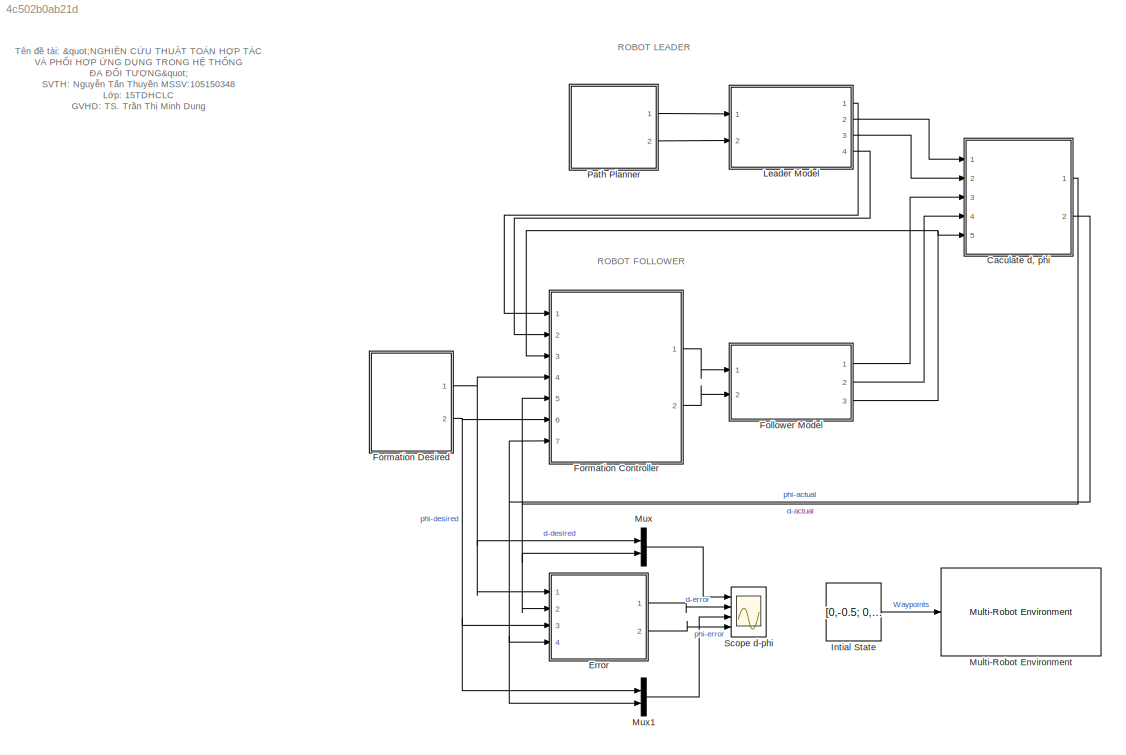
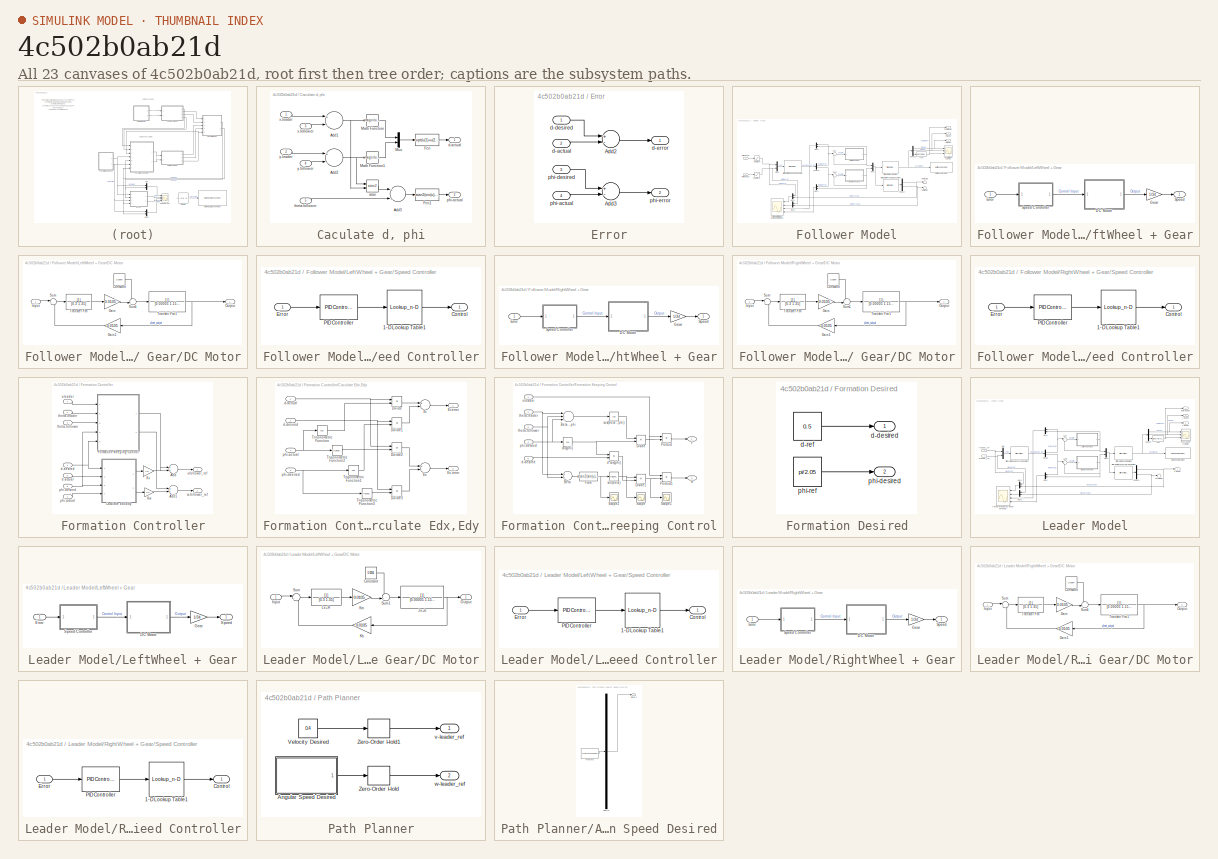
[diagram: thumbnail index - all 23 canvases of the model, root first then tree order]
MODEL slx_4c502b0ab21d
KIND model
CONFIG AbsTol = auto
CONFIG EnableMultiTasking = off
CONFIG FixedStep = 0.01
CONFIG MaxStep = auto
CONFIG MinStep = auto
CONFIG RelTol = 1e-3
CONFIG SampleTimeConstraint = Unconstrained
CONFIG Solver = FixedStepAuto
CONFIG SolverName = FixedStepAuto
CONFIG StartTime = 0.0
CONFIG StopTime = 25
BLOCK [SubSystem] Caculate d, phi
  Ports = [5, 2]
  RequestExecContextInheritance = off
BLOCK [Sum] Caculate d, phi/Add1
  InputSameDT = off
  Inputs = +-
  OutDataTypeStr = Inherit: Inherit via internal rule
  Ports = [2, 1]
  SaturateOnIntegerOverflow = off
BLOCK [Sum] Caculate d, phi/Add2
  InputSameDT = off
  Inputs = +-
  OutDataTypeStr = Inherit: Inherit via internal rule
  Ports = [2, 1]
  SaturateOnIntegerOverflow = off
BLOCK [Sum] Caculate d, phi/Add3
  InputSameDT = off
  Inputs = +-
  OutDataTypeStr = Inherit: Inherit via internal rule
  Ports = [2, 1]
  SaturateOnIntegerOverflow = off
BLOCK [Fcn] Caculate d, phi/Fcn
  Expr = sqrt(u(1)+u(2))
BLOCK [Fcn] Caculate d, phi/Fcn1
  Expr = atan2(sin(u),cos(u))
BLOCK [Math] Caculate d, phi/Math Function
  Operator = magnitude^2
  Ports = [1, 1]
BLOCK [Math] Caculate d, phi/Math Function1
  Operator = magnitude^2
  Ports = [1, 1]
BLOCK [Mux] Caculate d, phi/Mux
  DisplayOption = bar
  Inputs = 2
  Ports = [2, 1]
BLOCK [Trigonometry] Caculate d, phi/atan
  Operator = atan2
  Ports = [2, 1]
BLOCK [Outport] Caculate d, phi/d-actual
  IconDisplay = Port number
BLOCK [Outport] Caculate d, phi/phi-actual
  IconDisplay = Port number
  Port = 2
BLOCK [Inport] Caculate d, phi/theta-follower
  IconDisplay = Port number
  Port = 5
BLOCK [Inport] Caculate d, phi/x-follower
  IconDisplay = Port number
  Port = 3
BLOCK [Inport] Caculate d, phi/x-leader
  IconDisplay = Port number
BLOCK [Inport] Caculate d, phi/y-follower
  IconDisplay = Port number
  Port = 4
BLOCK [Inport] Caculate d, phi/y-leader
  IconDisplay = Port number
  Port = 2
BLOCK [SubSystem] Error
  Ports = [4, 2]
  RequestExecContextInheritance = off
BLOCK [Sum] Error/Add2
  InputSameDT = off
  Inputs = +-
  OutDataTypeStr = Inherit: Inherit via internal rule
  Ports = [2, 1]
  SaturateOnIntegerOverflow = off
BLOCK [Sum] Error/Add3
  InputSameDT = off
  Inputs = +-
  OutDataTypeStr = Inherit: Inherit via internal rule
  Ports = [2, 1]
  SaturateOnIntegerOverflow = off
BLOCK [Inport] Error/d-actual
  IconDisplay = Port number
  Port = 2
BLOCK [Inport] Error/d-desired
  IconDisplay = Port number
BLOCK [Outport] Error/d-error
  IconDisplay = Port number
BLOCK [Inport] Error/phi-actual
  IconDisplay = Port number
  Port = 4
BLOCK [Inport] Error/phi-desired
  IconDisplay = Port number
  Port = 3
BLOCK [Outport] Error/phi-error
  IconDisplay = Port number
  Port = 2
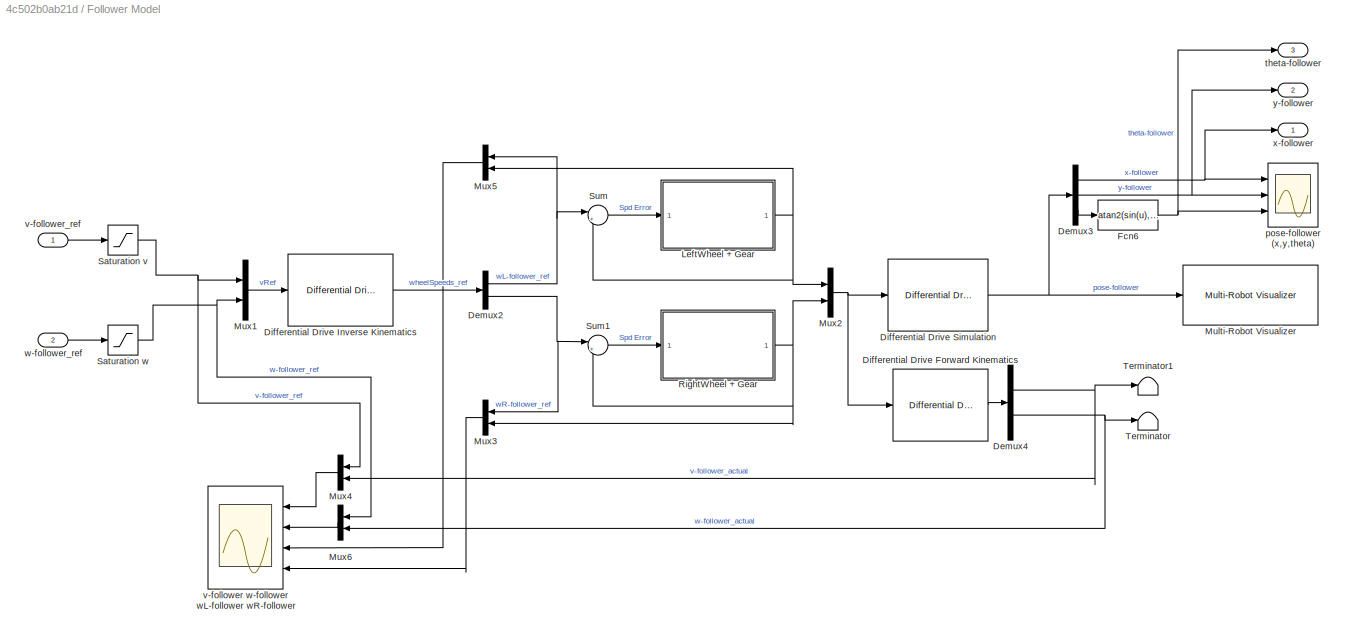
BLOCK [SubSystem] Follower Model
  Ports = [2, 3]
  RequestExecContextInheritance = off
BLOCK [Demux] Follower Model/Demux2
  DisplayOption = bar
  Outputs = 2
  Ports = [1, 2]
BLOCK [Demux] Follower Model/Demux3
  DisplayOption = bar
  Outputs = 3
  Ports = [1, 3]
BLOCK [Demux] Follower Model/Demux4
  DisplayOption = bar
  Outputs = 2
  Ports = [1, 2]
BLOCK [Reference] Follower Model/Differential Drive Forward Kinematics  REF=mobileRoboticsLib/Kinematic Models/Differential Drive/Differential Drive
Forward Kinematics
  Ports = [1, 1]
  SourceBlock = mobileRoboticsLib/Kinematic Models/Differential Drive/Differential Drive\nForward Kinematics
  SourceProductName = Mobile Robotics Simulation Toolbox
  SourceType = Differential Drive Forward Kinematics
BLOCK [Reference] Follower Model/Differential Drive Inverse Kinematics  REF=mobileRoboticsLib/Kinematic Models/Differential Drive/Differential Drive
Inverse Kinematics
  Ports = [1, 1]
  SourceBlock = mobileRoboticsLib/Kinematic Models/Differential Drive/Differential Drive\nInverse Kinematics
  SourceProductName = Mobile Robotics Simulation Library
  SourceType = Differential Drive Inverse Kinematics
BLOCK [Reference] Follower Model/Differential Drive Simulation  REF=mobileRoboticsLib/Kinematic Models/Differential Drive/Differential Drive Simulation
  Ports = [1, 1]
  SourceBlock = mobileRoboticsLib/Kinematic Models/Differential Drive/Differential Drive Simulation
  SourceProductName = Mobile Robotics Simulation Library
  SourceType = Differential Drive Simulation
BLOCK [Fcn] Follower Model/Fcn6
  Expr = atan2(sin(u),cos(u))
BLOCK [SubSystem] Follower Model/LeftWheel + Gear
  Ports = [1, 1]
  RequestExecContextInheritance = off
BLOCK [SubSystem] Follower Model/LeftWheel + Gear/DC Motor
  Ports = [1, 1]
  RequestExecContextInheritance = off
BLOCK [Constant] Follower Model/LeftWheel + Gear/DC Motor/Constant
  Value = 0.0054
BLOCK [Gain] Follower Model/LeftWheel + Gear/DC Motor/Gain
  Gain = 0.0105
  OutDataTypeStr = Inherit: Inherit via internal rule
  ParamDataTypeStr = Inherit: Inherit via internal rule
  SaturateOnIntegerOverflow = off
BLOCK [Gain] Follower Model/LeftWheel + Gear/DC Motor/Gain1
  Gain = 0.0105
  OutDataTypeStr = Inherit: Inherit via internal rule
  ParamDataTypeStr = Inherit: Inherit via internal rule
  SaturateOnIntegerOverflow = off
BLOCK [Inport] Follower Model/LeftWheel + Gear/DC Motor/Input
  IconDisplay = Port number
BLOCK [Outport] Follower Model/LeftWheel + Gear/DC Motor/Output
  IconDisplay = Port number
BLOCK [Sum] Follower Model/LeftWheel + Gear/DC Motor/Sum
  IconShape = round
  InputSameDT = off
  Inputs = |+-
  OutDataTypeStr = Inherit: Inherit via internal rule
  Ports = [2, 1]
  SaturateOnIntegerOverflow = off
BLOCK [Sum] Follower Model/LeftWheel + Gear/DC Motor/Sum1
  IconShape = round
  InputSameDT = off
  Inputs = -+|
  OutDataTypeStr = Inherit: Inherit via internal rule
  Ports = [2, 1]
  SaturateOnIntegerOverflow = off
BLOCK [TransferFcn] Follower Model/LeftWheel + Gear/DC Motor/Transfer Fcn
  Denominator = [0.3 1.35]
BLOCK [TransferFcn] Follower Model/LeftWheel + Gear/DC Motor/Transfer Fcn1
  Denominator = [0.00005 1.15e-6]
BLOCK [Inport] Follower Model/LeftWheel + Gear/Error
  IconDisplay = Port number
BLOCK [Gain] Follower Model/LeftWheel + Gear/Gear
  Gain = 1/34
  OutDataTypeStr = Inherit: Inherit via internal rule
  ParamDataTypeStr = Inherit: Inherit via internal rule
  SaturateOnIntegerOverflow = off
BLOCK [Outport] Follower Model/LeftWheel + Gear/Speed
  IconDisplay = Port number
BLOCK [SubSystem] Follower Model/LeftWheel + Gear/Speed Controller
  Ports = [1, 1]
  RequestExecContextInheritance = off
BLOCK [Lookup_n-D] Follower Model/LeftWheel + Gear/Speed Controller/1-D Lookup Table1
  BreakpointsForDimension1 = [-255:1:255]
  InternalRulePriority = Speed
  NumberOfTableDimensions = 1
  Ports = [1, 1]
  RndMeth = Simplest
  Table = [-11.999994:0.0470588:11.999994]
BLOCK [Outport] Follower Model/LeftWheel + Gear/Speed Controller/Control
  IconDisplay = Port number
BLOCK [Inport] Follower Model/LeftWheel + Gear/Speed Controller/Error
  IconDisplay = Port number
BLOCK [Reference] Follower Model/LeftWheel + Gear/Speed Controller/PID Controller  REF=simulink/Continuous/PID Controller
  Ports = [1, 1]
  SourceBlock = simulink/Continuous/PID Controller
  SourceProductBaseCode = SL
  SourceProductName = Simulink
  SourceType = PID 1dof
BLOCK [Reference] Follower Model/Multi-Robot Visualizer  REF=mobileRoboticsLib/Environments/Multi-Robot Visualizer
  Ports = [1]
  SourceBlock = mobileRoboticsLib/Environments/Multi-Robot Visualizer
  SourceProductName = Mobile Robotics Simulation Toolbox
  SourceType = Multi-Robot Visualizer
BLOCK [Mux] Follower Model/Mux1
  DisplayOption = bar
  Inputs = 2
  Ports = [2, 1]
BLOCK [Mux] Follower Model/Mux2
  DisplayOption = bar
  Inputs = 2
  Ports = [2, 1]
BLOCK [Mux] Follower Model/Mux3
  DisplayOption = bar
  Inputs = 2
  Ports = [2, 1]
BLOCK [Mux] Follower Model/Mux4
  DisplayOption = bar
  Inputs = 2
  Ports = [2, 1]
BLOCK [Mux] Follower Model/Mux5
  DisplayOption = bar
  Inputs = 2
  Ports = [2, 1]
BLOCK [Mux] Follower Model/Mux6
  DisplayOption = bar
  Inputs = 2
  Ports = [2, 1]
BLOCK [SubSystem] Follower Model/RightWheel + Gear
  Ports = [1, 1]
  RequestExecContextInheritance = off
BLOCK [SubSystem] Follower Model/RightWheel + Gear/DC Motor
  Ports = [1, 1]
  RequestExecContextInheritance = off
BLOCK [Constant] Follower Model/RightWheel + Gear/DC Motor/Constant
  Value = 0.0054
BLOCK [Gain] Follower Model/RightWheel + Gear/DC Motor/Gain
  Gain = 0.0105
  OutDataTypeStr = Inherit: Inherit via internal rule
  ParamDataTypeStr = Inherit: Inherit via internal rule
  SaturateOnIntegerOverflow = off
BLOCK [Gain] Follower Model/RightWheel + Gear/DC Motor/Gain1
  Gain = 0.0105
  OutDataTypeStr = Inherit: Inherit via internal rule
  ParamDataTypeStr = Inherit: Inherit via internal rule
  SaturateOnIntegerOverflow = off
BLOCK [Inport] Follower Model/RightWheel + Gear/DC Motor/Input
  IconDisplay = Port number
BLOCK [Outport] Follower Model/RightWheel + Gear/DC Motor/Output
  IconDisplay = Port number
BLOCK [Sum] Follower Model/RightWheel + Gear/DC Motor/Sum
  IconShape = round
  InputSameDT = off
  Inputs = |+-
  OutDataTypeStr = Inherit: Inherit via internal rule
  Ports = [2, 1]
  SaturateOnIntegerOverflow = off
BLOCK [Sum] Follower Model/RightWheel + Gear/DC Motor/Sum1
  IconShape = round
  InputSameDT = off
  Inputs = -+|
  OutDataTypeStr = Inherit: Inherit via internal rule
  Ports = [2, 1]
  SaturateOnIntegerOverflow = off
BLOCK [TransferFcn] Follower Model/RightWheel + Gear/DC Motor/Transfer Fcn
  Denominator = [0.3 1.35]
BLOCK [TransferFcn] Follower Model/RightWheel + Gear/DC Motor/Transfer Fcn1
  Denominator = [0.00005 1.15e-6]
BLOCK [Inport] Follower Model/RightWheel + Gear/Error
  IconDisplay = Port number
BLOCK [Gain] Follower Model/RightWheel + Gear/Gear
  Gain = 1/34
  OutDataTypeStr = Inherit: Inherit via internal rule
  ParamDataTypeStr = Inherit: Inherit via internal rule
  SaturateOnIntegerOverflow = off
BLOCK [Outport] Follower Model/RightWheel + Gear/Speed
  IconDisplay = Port number
BLOCK [SubSystem] Follower Model/RightWheel + Gear/Speed Controller
  Ports = [1, 1]
  RequestExecContextInheritance = off
BLOCK [Lookup_n-D] Follower Model/RightWheel + Gear/Speed Controller/1-D Lookup Table1
  BreakpointsForDimension1 = [-255:1:255]
  InternalRulePriority = Speed
  NumberOfTableDimensions = 1
  Ports = [1, 1]
  RndMeth = Simplest
  Table = [-11.999994:0.0470588:11.999994]
BLOCK [Outport] Follower Model/RightWheel + Gear/Speed Controller/Control
  IconDisplay = Port number
BLOCK [Inport] Follower Model/RightWheel + Gear/Speed Controller/Error
  IconDisplay = Port number
BLOCK [Reference] Follower Model/RightWheel + Gear/Speed Controller/PID Controller  REF=simulink/Continuous/PID Controller
  Ports = [1, 1]
  SourceBlock = simulink/Continuous/PID Controller
  SourceProductBaseCode = SL
  SourceProductName = Simulink
  SourceType = PID 1dof
BLOCK [Saturate] Follower Model/Saturation v
  InputPortMap = u0
  LowerLimit = 0
  Ports = [1, 1]
  UpperLimit = 0.8
BLOCK [Saturate] Follower Model/Saturation w
  InputPortMap = u0
  Ports = [1, 1]
BLOCK [Sum] Follower Model/Sum
  IconShape = round
  InputSameDT = off
  Inputs = |+-
  OutDataTypeStr = Inherit: Inherit via internal rule
  Ports = [2, 1]
  SaturateOnIntegerOverflow = off
BLOCK [Sum] Follower Model/Sum1
  IconShape = round
  InputSameDT = off
  Inputs = |+-
  OutDataTypeStr = Inherit: Inherit via internal rule
  Ports = [2, 1]
  SaturateOnIntegerOverflow = off
BLOCK [Terminator] Follower Model/Terminator
BLOCK [Terminator] Follower Model/Terminator1
BLOCK [Scope] Follower Model/pose-follower (x,y,theta)
  Floating = off
  NumInputPorts = 3
  Ports = [3]
  ScopeSpecificationString = Simulink.scopes.TimeScopeBlockCfg('CurrentConfiguration', extmgr.ConfigurationSet(extmgr.Configuration('Core','General UI',true,'FigureColor',[1 1 1]),extmgr.Configuration('Core','Source UI',true),extmgr.Configuration('Sources','WiredSimulink',true,'DataLoggingVariableName','ScopeData1'),extmgr.Configuration('Visuals','Time Domain',true,'SerializedDisplays',{struct('MinYLimReal','-0.66272','MaxYLi...<+3225ch>
BLOCK [Outport] Follower Model/theta-follower
  IconDisplay = Port number
  Port = 3
BLOCK [Scope] Follower Model/v-follower w-follower wL-follower wR-follower
  Floating = off
  NumInputPorts = 4
  Ports = [4]
  ScopeSpecificationString = Simulink.scopes.TimeScopeBlockCfg('CurrentConfiguration', extmgr.ConfigurationSet(extmgr.Configuration('Core','General UI',true,'FigureColor',[1 1 1]),extmgr.Configuration('Core','Source UI',true),extmgr.Configuration('Sources','WiredSimulink',true,'DataLoggingVariableName','ScopeData2'),extmgr.Configuration('Visuals','Time Domain',true,'SerializedDisplays',{struct('MinYLimReal','-0.07805','MaxYLi...<+4511ch>
BLOCK [Inport] Follower Model/v-follower_ref
  IconDisplay = Port number
BLOCK [Inport] Follower Model/w-follower_ref
  IconDisplay = Port number
  Port = 2
BLOCK [Outport] Follower Model/x-follower
  IconDisplay = Port number
BLOCK [Outport] Follower Model/y-follower
  IconDisplay = Port number
  Port = 2
BLOCK [SubSystem] Formation Controller
  Ports = [7, 2]
  RequestExecContextInheritance = off
BLOCK [Sum] Formation Controller/Add
  InputSameDT = off
  OutDataTypeStr = Inherit: Inherit via internal rule
  Ports = [2, 1]
  SaturateOnIntegerOverflow = off
BLOCK [Sum] Formation Controller/Add1
  InputSameDT = off
  OutDataTypeStr = Inherit: Inherit via internal rule
  Ports = [2, 1]
  SaturateOnIntegerOverflow = off
BLOCK [SubSystem] Formation Controller/Caculate Edx,Edy
  Ports = [4, 2]
  RequestExecContextInheritance = off
BLOCK [Product] Formation Controller/Caculate Edx,Edy/Divide
  InputSameDT = off
  Inputs = **
  OutDataTypeStr = Inherit: Inherit via internal rule
  Ports = [2, 1]
  RndMeth = Floor
  SaturateOnIntegerOverflow = off
BLOCK [Product] Formation Controller/Caculate Edx,Edy/Divide1
  InputSameDT = off
  Inputs = **
  OutDataTypeStr = Inherit: Inherit via internal rule
  Ports = [2, 1]
  RndMeth = Floor
  SaturateOnIntegerOverflow = off
BLOCK [Product] Formation Controller/Caculate Edx,Edy/Divide2
  InputSameDT = off
  Inputs = **
  OutDataTypeStr = Inherit: Inherit via internal rule
  Ports = [2, 1]
  RndMeth = Floor
  SaturateOnIntegerOverflow = off
BLOCK [Product] Formation Controller/Caculate Edx,Edy/Divide3
  InputSameDT = off
  Inputs = **
  OutDataTypeStr = Inherit: Inherit via internal rule
  Ports = [2, 1]
  RndMeth = Floor
  SaturateOnIntegerOverflow = off
BLOCK [Sum] Formation Controller/Caculate Edx,Edy/Et
  InputSameDT = off
  Inputs = +-
  OutDataTypeStr = Inherit: Inherit via internal rule
  Ports = [2, 1]
  SaturateOnIntegerOverflow = off
BLOCK [Outport] Formation Controller/Caculate Edx,Edy/Et-error
  IconDisplay = Port number
BLOCK [Sum] Formation Controller/Caculate Edx,Edy/Ev
  InputSameDT = off
  Inputs = +-
  OutDataTypeStr = Inherit: Inherit via internal rule
  Ports = [2, 1]
  SaturateOnIntegerOverflow = off
BLOCK [Outport] Formation Controller/Caculate Edx,Edy/Ev-error
  IconDisplay = Port number
  Port = 2
BLOCK [Trigonometry] Formation Controller/Caculate Edx,Edy/Trigonometric Function
  Operator = cos
  Ports = [1, 1]
BLOCK [Trigonometry] Formation Controller/Caculate Edx,Edy/Trigonometric Function1
  Operator = cos
  Ports = [1, 1]
BLOCK [Trigonometry] Formation Controller/Caculate Edx,Edy/Trigonometric Function2
  Ports = [1, 1]
BLOCK [Trigonometry] Formation Controller/Caculate Edx,Edy/Trigonometric Function3
  Ports = [1, 1]
BLOCK [Inport] Formation Controller/Caculate Edx,Edy/d-actual
  IconDisplay = Port number
  Port = 2
BLOCK [Inport] Formation Controller/Caculate Edx,Edy/d-desired
  IconDisplay = Port number
BLOCK [Inport] Formation Controller/Caculate Edx,Edy/phi-actual
  IconDisplay = Port number
  Port = 4
BLOCK [Inport] Formation Controller/Caculate Edx,Edy/phi-desired
  IconDisplay = Port number
  Port = 3
BLOCK [SubSystem] Formation Controller/Formation Keeping Control
  Ports = [5, 2]
  RequestExecContextInheritance = off
BLOCK [Sum] Formation Controller/Formation Keeping Control/Beta
  InputSameDT = off
  Inputs = +-
  OutDataTypeStr = Inherit: Inherit via internal rule
  Ports = [2, 1]
  SaturateOnIntegerOverflow = off
BLOCK [Sum] Formation Controller/Formation Keeping Control/Beta - phi
  InputSameDT = off
  Inputs = +--
  OutDataTypeStr = Inherit: Inherit via internal rule
  Ports = [3, 1]
  SaturateOnIntegerOverflow = off
BLOCK [Product] Formation Controller/Formation Keeping Control/Divide
  InputSameDT = off
  Inputs = */
  OutDataTypeStr = Inherit: Inherit via internal rule
  Ports = [2, 1]
  RndMeth = Floor
  SaturateOnIntegerOverflow = off
BLOCK [Product] Formation Controller/Formation Keeping Control/Divide1
  InputSameDT = off
  Inputs = */
  OutDataTypeStr = Inherit: Inherit via internal rule
  Ports = [2, 1]
  RndMeth = Floor
  SaturateOnIntegerOverflow = off
BLOCK [Fcn] Formation Controller/Formation Keeping Control/Fcn6
  Expr = atan2(sin(u),cos(u))
BLOCK [Product] Formation Controller/Formation Keeping Control/Product
  InputSameDT = off
  OutDataTypeStr = Inherit: Inherit via internal rule
  Ports = [2, 1]
  RndMeth = Floor
  SaturateOnIntegerOverflow = off
BLOCK [Product] Formation Controller/Formation Keeping Control/Product1
  InputSameDT = off
  OutDataTypeStr = Inherit: Inherit via internal rule
  Ports = [2, 1]
  RndMeth = Floor
  SaturateOnIntegerOverflow = off
BLOCK [Scope] Formation Controller/Formation Keeping Control/Scope
  Floating = off
  NumInputPorts = 1
  Ports = [1]
  ScopeSpecificationString = Simulink.scopes.TimeScopeBlockCfg('CurrentConfiguration', extmgr.ConfigurationSet(extmgr.Configuration('Core','General UI',true),extmgr.Configuration('Core','Source UI',true),extmgr.Configuration('Sources','WiredSimulink',true,'DataLoggingVariableName','ScopeData4'),extmgr.Configuration('Visuals','Time Domain',true,'SerializedDisplays',{struct('MinYLimReal','-0.0383','MaxYLimReal','0.0383','YLabel...<+1406ch>
BLOCK [Scope] Formation Controller/Formation Keeping Control/Scope1
  Floating = off
  NumInputPorts = 1
  Ports = [1]
  ScopeSpecificationString = Simulink.scopes.TimeScopeBlockCfg('CurrentConfiguration', extmgr.ConfigurationSet(extmgr.Configuration('Core','General UI',true),extmgr.Configuration('Core','Source UI',true),extmgr.Configuration('Sources','WiredSimulink',true,'DataLoggingVariableName','ScopeData2'),extmgr.Configuration('Visuals','Time Domain',true,'SerializedDisplays',{struct('MinYLimReal','-2.00000','MaxYLimReal','2.00000','YLab...<+1439ch>
BLOCK [Scope] Formation Controller/Formation Keeping Control/Scope2
  Floating = off
  NumInputPorts = 1
  Ports = [1]
  ScopeSpecificationString = Simulink.scopes.TimeScopeBlockCfg('CurrentConfiguration', extmgr.ConfigurationSet(extmgr.Configuration('Core','General UI',true),extmgr.Configuration('Core','Source UI',true),extmgr.Configuration('Sources','WiredSimulink',true,'DataLoggingVariableName','ScopeData1'),extmgr.Configuration('Visuals','Time Domain',true,'SerializedDisplays',{struct('MinYLimReal','-0.01785','MaxYLimReal','0.01783','YLab...<+1434ch>
BLOCK [Trigonometry] Formation Controller/Formation Keeping Control/cos(beta - phi)
  Operator = cos
  Ports = [1, 1]
BLOCK [Trigonometry] Formation Controller/Formation Keeping Control/cos(phi)
  Operator = cos
  Ports = [1, 1]
BLOCK [Product] Formation Controller/Formation Keeping Control/d*cos(phi)
  InputSameDT = off
  Inputs = **
  OutDataTypeStr = Inherit: Inherit via internal rule
  Ports = [2, 1]
  RndMeth = Floor
  SaturateOnIntegerOverflow = off
BLOCK [Inport] Formation Controller/Formation Keeping Control/d-desired
  IconDisplay = Port number
  Port = 5
BLOCK [Inport] Formation Controller/Formation Keeping Control/phi-desired
  IconDisplay = Port number
  Port = 4
BLOCK [Trigonometry] Formation Controller/Formation Keeping Control/sin(beta)
  Ports = [1, 1]
BLOCK [Inport] Formation Controller/Formation Keeping Control/theta-follower
  IconDisplay = Port number
  Port = 3
BLOCK [Inport] Formation Controller/Formation Keeping Control/theta-leader
  IconDisplay = Port number
  Port = 2
BLOCK [Outport] Formation Controller/Formation Keeping Control/v
  IconDisplay = Port number
BLOCK [Inport] Formation Controller/Formation Keeping Control/v-leader
  IconDisplay = Port number
BLOCK [Outport] Formation Controller/Formation Keeping Control/w
  IconDisplay = Port number
  Port = 2
BLOCK [Gain] Formation Controller/Kv
  Gain = 1.8
  OutDataTypeStr = Inherit: Inherit via internal rule
  ParamDataTypeStr = Inherit: Inherit via internal rule
  SaturateOnIntegerOverflow = off
BLOCK [Gain] Formation Controller/Kw
  Gain = 0.5
  OutDataTypeStr = Inherit: Inherit via internal rule
  ParamDataTypeStr = Inherit: Inherit via internal rule
  SaturateOnIntegerOverflow = off
BLOCK [Inport] Formation Controller/d-actual
  IconDisplay = Port number
  Port = 5
BLOCK [Inport] Formation Controller/d-desired
  IconDisplay = Port number
  Port = 4
BLOCK [Inport] Formation Controller/phi-actual
  IconDisplay = Port number
  Port = 7
BLOCK [Inport] Formation Controller/phi-desired
  IconDisplay = Port number
  Port = 6
BLOCK [Inport] Formation Controller/theta-follower
  IconDisplay = Port number
  Port = 3
BLOCK [Inport] Formation Controller/theta-leader
  IconDisplay = Port number
  Port = 2
BLOCK [Outport] Formation Controller/v-follower_ref
  IconDisplay = Port number
BLOCK [Inport] Formation Controller/v-leader
  IconDisplay = Port number
BLOCK [Outport] Formation Controller/w-follower_ref
  IconDisplay = Port number
  Port = 2
BLOCK [SubSystem] Formation Desired
  Ports = [0, 2]
  RequestExecContextInheritance = off
BLOCK [Outport] Formation Desired/d-desired
  IconDisplay = Port number
BLOCK [Constant] Formation Desired/d-ref
  Value = 0.5
BLOCK [Outport] Formation Desired/phi-desired
  IconDisplay = Port number
  Port = 2
BLOCK [Constant] Formation Desired/phi-ref
  Value = pi/2.05
BLOCK [Constant] Intial State
  Value = [0,-0.5; 0,0]
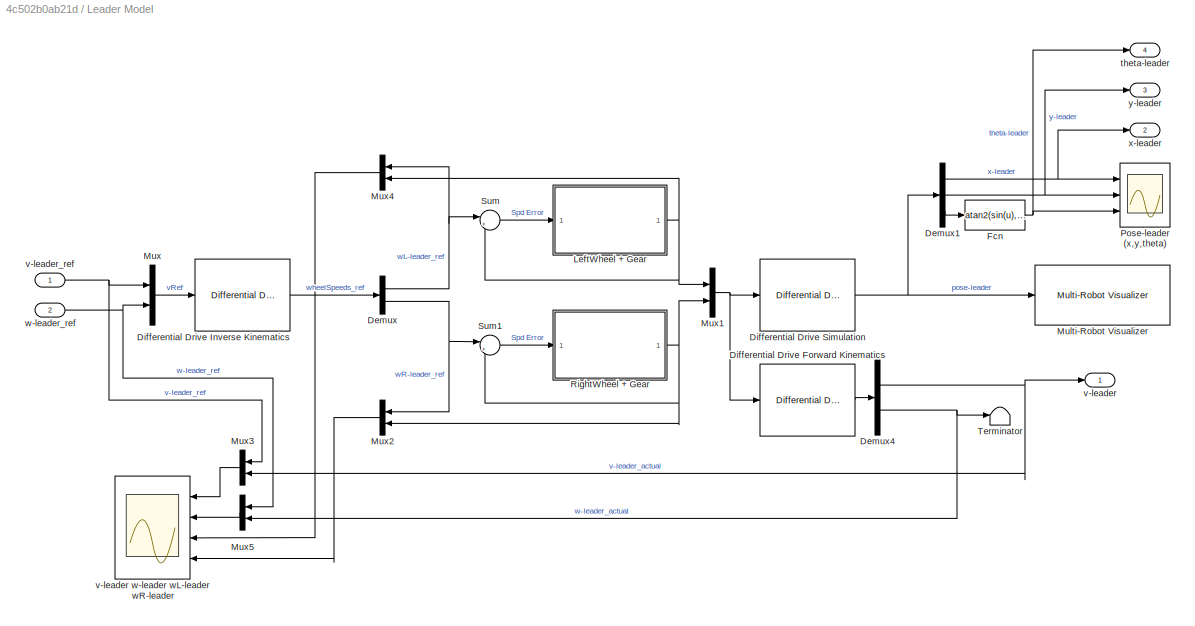
BLOCK [SubSystem] Leader Model
  Ports = [2, 4]
  RequestExecContextInheritance = off
BLOCK [Demux] Leader Model/Demux
  DisplayOption = bar
  Outputs = 2
  Ports = [1, 2]
BLOCK [Demux] Leader Model/Demux1
  DisplayOption = bar
  Outputs = 3
  Ports = [1, 3]
BLOCK [Demux] Leader Model/Demux4
  DisplayOption = bar
  Outputs = 2
  Ports = [1, 2]
BLOCK [Reference] Leader Model/Differential Drive Forward Kinematics  REF=mobileRoboticsLib/Kinematic Models/Differential Drive/Differential Drive
Forward Kinematics
  Ports = [1, 1]
  SourceBlock = mobileRoboticsLib/Kinematic Models/Differential Drive/Differential Drive\nForward Kinematics
  SourceProductName = Mobile Robotics Simulation Toolbox
  SourceType = Differential Drive Forward Kinematics
BLOCK [Reference] Leader Model/Differential Drive Inverse Kinematics  REF=mobileRoboticsLib/Kinematic Models/Differential Drive/Differential Drive
Inverse Kinematics
  Ports = [1, 1]
  SourceBlock = mobileRoboticsLib/Kinematic Models/Differential Drive/Differential Drive\nInverse Kinematics
  SourceProductName = Mobile Robotics Simulation Toolbox
  SourceType = Differential Drive Inverse Kinematics
BLOCK [Reference] Leader Model/Differential Drive Simulation  REF=mobileRoboticsLib/Kinematic Models/Differential Drive/Differential Drive Simulation
  Ports = [1, 1]
  SourceBlock = mobileRoboticsLib/Kinematic Models/Differential Drive/Differential Drive Simulation
  SourceProductName = Mobile Robotics Simulation Toolbox
  SourceType = Differential Drive Simulation
BLOCK [Fcn] Leader Model/Fcn
  Expr = atan2(sin(u),cos(u))
BLOCK [SubSystem] Leader Model/LeftWheel + Gear
  Ports = [1, 1]
  RequestExecContextInheritance = off
BLOCK [SubSystem] Leader Model/LeftWheel + Gear/DC Motor
  Ports = [1, 1]
  RequestExecContextInheritance = off
BLOCK [Constant] Leader Model/LeftWheel + Gear/DC Motor/Constant
  Value = 0.0054
BLOCK [Inport] Leader Model/LeftWheel + Gear/DC Motor/Input
  IconDisplay = Port number
BLOCK [TransferFcn] Leader Model/LeftWheel + Gear/DC Motor/Js+b
  Denominator = [0.00005 1.15e-6]
BLOCK [Gain] Leader Model/LeftWheel + Gear/DC Motor/Kb
  Gain = 0.0105
  OutDataTypeStr = Inherit: Inherit via internal rule
  ParamDataTypeStr = Inherit: Inherit via internal rule
  SaturateOnIntegerOverflow = off
BLOCK [Gain] Leader Model/LeftWheel + Gear/DC Motor/Km
  Gain = 0.0105
  OutDataTypeStr = Inherit: Inherit via internal rule
  ParamDataTypeStr = Inherit: Inherit via internal rule
  SaturateOnIntegerOverflow = off
BLOCK [TransferFcn] Leader Model/LeftWheel + Gear/DC Motor/Ls+R
  Denominator = [0.3 1.35]
BLOCK [Outport] Leader Model/LeftWheel + Gear/DC Motor/Output
  IconDisplay = Port number
BLOCK [Sum] Leader Model/LeftWheel + Gear/DC Motor/Sum
  IconShape = round
  InputSameDT = off
  Inputs = |+-
  OutDataTypeStr = Inherit: Inherit via internal rule
  Ports = [2, 1]
  SaturateOnIntegerOverflow = off
BLOCK [Sum] Leader Model/LeftWheel + Gear/DC Motor/Sum1
  IconShape = round
  InputSameDT = off
  Inputs = -+|
  OutDataTypeStr = Inherit: Inherit via internal rule
  Ports = [2, 1]
  SaturateOnIntegerOverflow = off
BLOCK [Inport] Leader Model/LeftWheel + Gear/Error
  IconDisplay = Port number
BLOCK [Gain] Leader Model/LeftWheel + Gear/Gear
  Gain = 1/34
  OutDataTypeStr = Inherit: Inherit via internal rule
  ParamDataTypeStr = Inherit: Inherit via internal rule
  SaturateOnIntegerOverflow = off
BLOCK [Outport] Leader Model/LeftWheel + Gear/Speed
  IconDisplay = Port number
BLOCK [SubSystem] Leader Model/LeftWheel + Gear/Speed Controller
  Ports = [1, 1]
  RequestExecContextInheritance = off
BLOCK [Lookup_n-D] Leader Model/LeftWheel + Gear/Speed Controller/1-D Lookup Table1
  BreakpointsForDimension1 = [-255:1:255]
  InternalRulePriority = Speed
  NumberOfTableDimensions = 1
  Ports = [1, 1]
  RndMeth = Simplest
  Table = [-11.999994:0.0470588:11.999994]
BLOCK [Outport] Leader Model/LeftWheel + Gear/Speed Controller/Control
  IconDisplay = Port number
BLOCK [Inport] Leader Model/LeftWheel + Gear/Speed Controller/Error
  IconDisplay = Port number
BLOCK [Reference] Leader Model/LeftWheel + Gear/Speed Controller/PID Controller  REF=simulink/Continuous/PID Controller
  Ports = [1, 1]
  SourceBlock = simulink/Continuous/PID Controller
  SourceProductBaseCode = SL
  SourceProductName = Simulink
  SourceType = PID 1dof
BLOCK [Reference] Leader Model/Multi-Robot Visualizer  REF=mobileRoboticsLib/Environments/Multi-Robot Visualizer
  Ports = [1]
  SourceBlock = mobileRoboticsLib/Environments/Multi-Robot Visualizer
  SourceProductName = Mobile Robotics Simulation Toolbox
  SourceType = Multi-Robot Visualizer
BLOCK [Mux] Leader Model/Mux
  DisplayOption = bar
  Inputs = 2
  Ports = [2, 1]
BLOCK [Mux] Leader Model/Mux1
  DisplayOption = bar
  Inputs = 2
  Ports = [2, 1]
BLOCK [Mux] Leader Model/Mux2
  DisplayOption = bar
  Inputs = 2
  Ports = [2, 1]
BLOCK [Mux] Leader Model/Mux3
  DisplayOption = bar
  Inputs = 2
  Ports = [2, 1]
BLOCK [Mux] Leader Model/Mux4
  DisplayOption = bar
  Inputs = 2
  Ports = [2, 1]
BLOCK [Mux] Leader Model/Mux5
  DisplayOption = bar
  Inputs = 2
  Ports = [2, 1]
BLOCK [Scope] Leader Model/Pose-leader (x,y,theta)
  Floating = off
  NumInputPorts = 3
  Ports = [3]
  ScopeSpecificationString = Simulink.scopes.TimeScopeBlockCfg('CurrentConfiguration', extmgr.ConfigurationSet(extmgr.Configuration('Core','General UI',true,'FigureColor',[1 1 1]),extmgr.Configuration('Core','Source UI',true),extmgr.Configuration('Sources','WiredSimulink',true,'DataLoggingVariableName','ScopeData1'),extmgr.Configuration('Visuals','Time Domain',true,'SerializedDisplays',{struct('MinYLimReal','-0.73129','MaxYLi...<+3217ch>
BLOCK [SubSystem] Leader Model/RightWheel + Gear
  Ports = [1, 1]
  RequestExecContextInheritance = off
BLOCK [SubSystem] Leader Model/RightWheel + Gear/DC Motor
  Ports = [1, 1]
  RequestExecContextInheritance = off
BLOCK [Constant] Leader Model/RightWheel + Gear/DC Motor/Constant
  Value = 0.0054
BLOCK [Gain] Leader Model/RightWheel + Gear/DC Motor/Gain
  Gain = 0.0105
  OutDataTypeStr = Inherit: Inherit via internal rule
  ParamDataTypeStr = Inherit: Inherit via internal rule
  SaturateOnIntegerOverflow = off
BLOCK [Gain] Leader Model/RightWheel + Gear/DC Motor/Gain1
  Gain = 0.0105
  OutDataTypeStr = Inherit: Inherit via internal rule
  ParamDataTypeStr = Inherit: Inherit via internal rule
  SaturateOnIntegerOverflow = off
BLOCK [Inport] Leader Model/RightWheel + Gear/DC Motor/Input
  IconDisplay = Port number
BLOCK [Outport] Leader Model/RightWheel + Gear/DC Motor/Output
  IconDisplay = Port number
BLOCK [Sum] Leader Model/RightWheel + Gear/DC Motor/Sum
  IconShape = round
  InputSameDT = off
  Inputs = |+-
  OutDataTypeStr = Inherit: Inherit via internal rule
  Ports = [2, 1]
  SaturateOnIntegerOverflow = off
BLOCK [Sum] Leader Model/RightWheel + Gear/DC Motor/Sum1
  IconShape = round
  InputSameDT = off
  Inputs = -+|
  OutDataTypeStr = Inherit: Inherit via internal rule
  Ports = [2, 1]
  SaturateOnIntegerOverflow = off
BLOCK [TransferFcn] Leader Model/RightWheel + Gear/DC Motor/Transfer Fcn
  Denominator = [0.3 1.35]
BLOCK [TransferFcn] Leader Model/RightWheel + Gear/DC Motor/Transfer Fcn1
  Denominator = [0.00005 1.15e-6]
BLOCK [Inport] Leader Model/RightWheel + Gear/Error
  IconDisplay = Port number
BLOCK [Gain] Leader Model/RightWheel + Gear/Gear
  Gain = 1/34
  OutDataTypeStr = Inherit: Inherit via internal rule
  ParamDataTypeStr = Inherit: Inherit via internal rule
  SaturateOnIntegerOverflow = off
BLOCK [Outport] Leader Model/RightWheel + Gear/Speed
  IconDisplay = Port number
BLOCK [SubSystem] Leader Model/RightWheel + Gear/Speed Controller
  Ports = [1, 1]
  RequestExecContextInheritance = off
BLOCK [Lookup_n-D] Leader Model/RightWheel + Gear/Speed Controller/1-D Lookup Table1
  BreakpointsForDimension1 = [-255:1:255]
  InternalRulePriority = Speed
  NumberOfTableDimensions = 1
  Ports = [1, 1]
  RndMeth = Simplest
  Table = [-11.999994:0.0470588:11.999994]
BLOCK [Outport] Leader Model/RightWheel + Gear/Speed Controller/Control
  IconDisplay = Port number
BLOCK [Inport] Leader Model/RightWheel + Gear/Speed Controller/Error
  IconDisplay = Port number
BLOCK [Reference] Leader Model/RightWheel + Gear/Speed Controller/PID Controller  REF=simulink/Continuous/PID Controller
  Ports = [1, 1]
  SourceBlock = simulink/Continuous/PID Controller
  SourceProductBaseCode = SL
  SourceProductName = Simulink
  SourceType = PID 1dof
BLOCK [Sum] Leader Model/Sum
  IconShape = round
  InputSameDT = off
  Inputs = |+-
  OutDataTypeStr = Inherit: Inherit via internal rule
  Ports = [2, 1]
  SaturateOnIntegerOverflow = off
BLOCK [Sum] Leader Model/Sum1
  IconShape = round
  InputSameDT = off
  Inputs = |+-
  OutDataTypeStr = Inherit: Inherit via internal rule
  Ports = [2, 1]
  SaturateOnIntegerOverflow = off
BLOCK [Terminator] Leader Model/Terminator
BLOCK [Outport] Leader Model/theta-leader
  IconDisplay = Port number
  Port = 4
BLOCK [Outport] Leader Model/v-leader
  IconDisplay = Port number
BLOCK [Scope] Leader Model/v-leader w-leader wL-leader wR-leader
  Floating = off
  NumInputPorts = 4
  Ports = [4]
  ScopeSpecificationString = Simulink.scopes.TimeScopeBlockCfg('CurrentConfiguration', extmgr.ConfigurationSet(extmgr.Configuration('Core','General UI',true,'FigureColor',[1 1 1]),extmgr.Configuration('Core','Source UI',true),extmgr.Configuration('Sources','WiredSimulink',true,'DataLoggingVariableName','ScopeData1'),extmgr.Configuration('Visuals','Time Domain',true,'SerializedDisplays',{struct('MinYLimReal','-0.05127','MaxYLi...<+4497ch>
BLOCK [Inport] Leader Model/v-leader_ref
  IconDisplay = Port number
BLOCK [Inport] Leader Model/w-leader_ref
  IconDisplay = Port number
  Port = 2
BLOCK [Outport] Leader Model/x-leader
  IconDisplay = Port number
  Port = 2
BLOCK [Outport] Leader Model/y-leader
  IconDisplay = Port number
  Port = 3
BLOCK [Reference] Multi-Robot Environment  REF=mobileRoboticsLib/Environments/Multi-Robot Environment
  Ports = [1]
  SourceBlock = mobileRoboticsLib/Environments/Multi-Robot Environment
  SourceProductName = Mobile Robotics Simulation Toolbox
  SourceType = Multi-Robot Environment
BLOCK [Mux] Mux
  DisplayOption = bar
  Inputs = 2
  Ports = [2, 1]
BLOCK [Mux] Mux1
  DisplayOption = bar
  Inputs = 2
  Ports = [2, 1]
BLOCK [SubSystem] Path Planner
  Ports = [0, 2]
  RequestExecContextInheritance = off
BLOCK [SubSystem] Path Planner/Angular Speed Desired
  ClipboardFcn = sigbuilder_block('clipboard');
  CloseFcn = sigbuilder_block('close');
  ContinueFcn = sigbuilder_block('continue');
  CopyFcn = sigbuilder_block('copy');
  DeleteFcn = sigbuilder_block('delete');
  LoadFcn = sigbuilder_block('load');
  MaskHideContents = on
  ModelCloseFcn = sigbuilder_block('modelClose');
  NameChangeFcn = sigbuilder_block('namechange');
  OpenFcn = sigbuilder_block('open',[283.5 152.25 550.5 359.25 ]);
  PauseFcn = sigbuilder_block('pause');
  Ports = [0, 1]
  PreSaveFcn = sigbuilder_block('preSave');
  RequestExecContextInheritance = off
  StartFcn = sigbuilder_block('start');
  StopFcn = sigbuilder_block('stop');
  Tag = STV Subsys
BLOCK [Demux] Path Planner/Angular Speed Desired/Demux
  Outputs = 1
  Ports = [1, 1]
  Tag = STV Demux
BLOCK [FromWorkspace] Path Planner/Angular Speed Desired/FromWs
  SampleTime = 0
  Tag = STV FromWs
  VariableName = tuvar
  ZeroCross = on
BLOCK [Outport] Path Planner/Angular Speed Desired/Signal 1
  IconDisplay = Port number
  Tag = STV Outport
BLOCK [Constant] Path Planner/Velocity Desired
  Value = 0.4
BLOCK [ZeroOrderHold] Path Planner/Zero-Order Hold
  SampleTime = 0.01
BLOCK [ZeroOrderHold] Path Planner/Zero-Order Hold1
  SampleTime = 0.01
BLOCK [Outport] Path Planner/v-leader_ref
  IconDisplay = Port number
BLOCK [Outport] Path Planner/w-leader_ref
  IconDisplay = Port number
  Port = 2
BLOCK [Scope] Scope d-phi
  Floating = off
  NumInputPorts = 4
  Ports = [4]
  ScopeSpecificationString = Simulink.scopes.TimeScopeBlockCfg('CurrentConfiguration', extmgr.ConfigurationSet(extmgr.Configuration('Core','General UI',true,'FigureColor',[1 1 1]),extmgr.Configuration('Core','Source UI',true),extmgr.Configuration('Sources','WiredSimulink',true,'DataLoggingVariableName','ScopeData1'),extmgr.Configuration('Visuals','Time Domain',true,'SerializedDisplays',{struct('MinYLimReal','0.49975','MaxYLim...<+4245ch>
ANNOTATION (root): ROBOT LEADER
ANNOTATION (root): ROBOT FOLLOWER
ANNOTATION (root): Tên đề tài: "NGHIÊN CỨU THUẬT TOÁN HỢP TÁC VÀ PHỐI HỢP ỨNG DỤNG TRONG HỆ THỐNG ĐA ĐỐI TƯỢNG" SVTH: Nguyễn Tấn Thuyền MSSV:105150348 Lớp: 15TDHCLC GVHD: TS. Trần Thị Minh Dung
NET Caculate d, phi/Add1:1 -> Caculate d, phi/Math Function:1, Caculate d, phi/atan:2
NET Caculate d, phi/Add2:1 -> Caculate d, phi/Math Function1:1, Caculate d, phi/atan:1
LINE Caculate d, phi/Add3:1 -> Caculate d, phi/Fcn1:1
LINE Caculate d, phi/Fcn1:1 -> Caculate d, phi/phi-actual:1
LINE Caculate d, phi/Fcn:1 -> Caculate d, phi/d-actual:1
LINE Caculate d, phi/Math Function1:1 -> Caculate d, phi/Mux:2
LINE Caculate d, phi/Math Function:1 -> Caculate d, phi/Mux:1
LINE Caculate d, phi/Mux:1 -> Caculate d, phi/Fcn:1
LINE Caculate d, phi/atan:1 -> Caculate d, phi/Add3:1
LINE Caculate d, phi/theta-follower:1 -> Caculate d, phi/Add3:2
LINE Caculate d, phi/x-follower:1 -> Caculate d, phi/Add1:2
LINE Caculate d, phi/x-leader:1 -> Caculate d, phi/Add1:1
LINE Caculate d, phi/y-follower:1 -> Caculate d, phi/Add2:2
LINE Caculate d, phi/y-leader:1 -> Caculate d, phi/Add2:1
NET Caculate d, phi:1 -> Error:2, Formation Controller:5, Mux:2
NET Caculate d, phi:2 -> Error:4, Formation Controller:7, Mux1:2
LINE Error/Add2:1 -> Error/d-error:1
LINE Error/Add3:1 -> Error/phi-error:1
LINE Error/d-actual:1 -> Error/Add2:2
LINE Error/d-desired:1 -> Error/Add2:1
LINE Error/phi-actual:1 -> Error/Add3:2
LINE Error/phi-desired:1 -> Error/Add3:1
LINE Error:1 -> Scope d-phi:2
LINE Error:2 -> Scope d-phi:4
NET Follower Model/Demux2:1 -> Follower Model/Mux5:1, Follower Model/Sum:1
NET Follower Model/Demux2:2 -> Follower Model/Mux3:1, Follower Model/Sum1:1
NET Follower Model/Demux3:1 -> Follower Model/pose-follower (x,y,theta):1, Follower Model/x-follower:1
NET Follower Model/Demux3:2 -> Follower Model/pose-follower (x,y,theta):2, Follower Model/y-follower:1
LINE Follower Model/Demux3:3 -> Follower Model/Fcn6:1
NET Follower Model/Demux4:1 -> Follower Model/Mux4:2, Follower Model/Terminator1:1
NET Follower Model/Demux4:2 -> Follower Model/Mux6:2, Follower Model/Terminator:1
LINE Follower Model/Differential Drive Forward Kinematics:1 -> Follower Model/Demux4:1
LINE Follower Model/Differential Drive Inverse Kinematics:1 -> Follower Model/Demux2:1
NET Follower Model/Differential Drive Simulation:1 -> Follower Model/Demux3:1, Follower Model/Multi-Robot Visualizer:1
NET Follower Model/Fcn6:1 -> Follower Model/pose-follower (x,y,theta):3, Follower Model/theta-follower:1
LINE Follower Model/LeftWheel + Gear/DC Motor/Constant:1 -> Follower Model/LeftWheel + Gear/DC Motor/Sum1:1
LINE Follower Model/LeftWheel + Gear/DC Motor/Gain1:1 -> Follower Model/LeftWheel + Gear/DC Motor/Sum:2
LINE Follower Model/LeftWheel + Gear/DC Motor/Gain:1 -> Follower Model/LeftWheel + Gear/DC Motor/Sum1:2
LINE Follower Model/LeftWheel + Gear/DC Motor/Input:1 -> Follower Model/LeftWheel + Gear/DC Motor/Sum:1
LINE Follower Model/LeftWheel + Gear/DC Motor/Sum1:1 -> Follower Model/LeftWheel + Gear/DC Motor/Transfer Fcn1:1
LINE Follower Model/LeftWheel + Gear/DC Motor/Sum:1 -> Follower Model/LeftWheel + Gear/DC Motor/Transfer Fcn:1
NET Follower Model/LeftWheel + Gear/DC Motor/Transfer Fcn1:1 -> Follower Model/LeftWheel + Gear/DC Motor/Gain1:1, Follower Model/LeftWheel + Gear/DC Motor/Output:1
LINE Follower Model/LeftWheel + Gear/DC Motor/Transfer Fcn:1 -> Follower Model/LeftWheel + Gear/DC Motor/Gain:1
LINE Follower Model/LeftWheel + Gear/DC Motor:1 -> Follower Model/LeftWheel + Gear/Gear:1
LINE Follower Model/LeftWheel + Gear/Error:1 -> Follower Model/LeftWheel + Gear/Speed Controller:1
LINE Follower Model/LeftWheel + Gear/Gear:1 -> Follower Model/LeftWheel + Gear/Speed:1
LINE Follower Model/LeftWheel + Gear/Speed Controller/1-D Lookup Table1:1 -> Follower Model/LeftWheel + Gear/Speed Controller/Control:1
LINE Follower Model/LeftWheel + Gear/Speed Controller/Error:1 -> Follower Model/LeftWheel + Gear/Speed Controller/PID Controller:1
LINE Follower Model/LeftWheel + Gear/Speed Controller/PID Controller:1 -> Follower Model/LeftWheel + Gear/Speed Controller/1-D Lookup Table1:1
LINE Follower Model/LeftWheel + Gear/Speed Controller:1 -> Follower Model/LeftWheel + Gear/DC Motor:1
NET Follower Model/LeftWheel + Gear:1 -> Follower Model/Mux2:1, Follower Model/Mux5:2, Follower Model/Sum:2
LINE Follower Model/Mux1:1 -> Follower Model/Differential Drive Inverse Kinematics:1
NET Follower Model/Mux2:1 -> Follower Model/Differential Drive Forward Kinematics:1, Follower Model/Differential Drive Simulation:1
LINE Follower Model/Mux3:1 -> Follower Model/v-follower w-follower wL-follower wR-follower:4
LINE Follower Model/Mux4:1 -> Follower Model/v-follower w-follower wL-follower wR-follower:1
LINE Follower Model/Mux5:1 -> Follower Model/v-follower w-follower wL-follower wR-follower:3
LINE Follower Model/Mux6:1 -> Follower Model/v-follower w-follower wL-follower wR-follower:2
LINE Follower Model/RightWheel + Gear/DC Motor/Constant:1 -> Follower Model/RightWheel + Gear/DC Motor/Sum1:1
LINE Follower Model/RightWheel + Gear/DC Motor/Gain1:1 -> Follower Model/RightWheel + Gear/DC Motor/Sum:2
LINE Follower Model/RightWheel + Gear/DC Motor/Gain:1 -> Follower Model/RightWheel + Gear/DC Motor/Sum1:2
LINE Follower Model/RightWheel + Gear/DC Motor/Input:1 -> Follower Model/RightWheel + Gear/DC Motor/Sum:1
LINE Follower Model/RightWheel + Gear/DC Motor/Sum1:1 -> Follower Model/RightWheel + Gear/DC Motor/Transfer Fcn1:1
LINE Follower Model/RightWheel + Gear/DC Motor/Sum:1 -> Follower Model/RightWheel + Gear/DC Motor/Transfer Fcn:1
NET Follower Model/RightWheel + Gear/DC Motor/Transfer Fcn1:1 -> Follower Model/RightWheel + Gear/DC Motor/Gain1:1, Follower Model/RightWheel + Gear/DC Motor/Output:1
LINE Follower Model/RightWheel + Gear/DC Motor/Transfer Fcn:1 -> Follower Model/RightWheel + Gear/DC Motor/Gain:1
LINE Follower Model/RightWheel + Gear/DC Motor:1 -> Follower Model/RightWheel + Gear/Gear:1
LINE Follower Model/RightWheel + Gear/Error:1 -> Follower Model/RightWheel + Gear/Speed Controller:1
LINE Follower Model/RightWheel + Gear/Gear:1 -> Follower Model/RightWheel + Gear/Speed:1
LINE Follower Model/RightWheel + Gear/Speed Controller/1-D Lookup Table1:1 -> Follower Model/RightWheel + Gear/Speed Controller/Control:1
LINE Follower Model/RightWheel + Gear/Speed Controller/Error:1 -> Follower Model/RightWheel + Gear/Speed Controller/PID Controller:1
LINE Follower Model/RightWheel + Gear/Speed Controller/PID Controller:1 -> Follower Model/RightWheel + Gear/Speed Controller/1-D Lookup Table1:1
LINE Follower Model/RightWheel + Gear/Speed Controller:1 -> Follower Model/RightWheel + Gear/DC Motor:1
NET Follower Model/RightWheel + Gear:1 -> Follower Model/Mux2:2, Follower Model/Mux3:2, Follower Model/Sum1:2
NET Follower Model/Saturation v:1 -> Follower Model/Mux1:1, Follower Model/Mux4:1
NET Follower Model/Saturation w:1 -> Follower Model/Mux1:2, Follower Model/Mux6:1
LINE Follower Model/Sum1:1 -> Follower Model/RightWheel + Gear:1
LINE Follower Model/Sum:1 -> Follower Model/LeftWheel + Gear:1
LINE Follower Model/v-follower_ref:1 -> Follower Model/Saturation v:1
LINE Follower Model/w-follower_ref:1 -> Follower Model/Saturation w:1
LINE Follower Model:1 -> Caculate d, phi:3
LINE Follower Model:2 -> Caculate d, phi:4
NET Follower Model:3 -> Caculate d, phi:5, Formation Controller:3
LINE Formation Controller/Add1:1 -> Formation Controller/w-follower_ref:1
LINE Formation Controller/Add:1 -> Formation Controller/v-follower_ref:1
LINE Formation Controller/Caculate Edx,Edy/Divide1:1 -> Formation Controller/Caculate Edx,Edy/Et:2
LINE Formation Controller/Caculate Edx,Edy/Divide2:1 -> Formation Controller/Caculate Edx,Edy/Ev:1
LINE Formation Controller/Caculate Edx,Edy/Divide3:1 -> Formation Controller/Caculate Edx,Edy/Ev:2
LINE Formation Controller/Caculate Edx,Edy/Divide:1 -> Formation Controller/Caculate Edx,Edy/Et:1
LINE Formation Controller/Caculate Edx,Edy/Et:1 -> Formation Controller/Caculate Edx,Edy/Et-error:1
LINE Formation Controller/Caculate Edx,Edy/Ev:1 -> Formation Controller/Caculate Edx,Edy/Ev-error:1
LINE Formation Controller/Caculate Edx,Edy/Trigonometric Function1:1 -> Formation Controller/Caculate Edx,Edy/Divide1:2
LINE Formation Controller/Caculate Edx,Edy/Trigonometric Function2:1 -> Formation Controller/Caculate Edx,Edy/Divide2:2
LINE Formation Controller/Caculate Edx,Edy/Trigonometric Function3:1 -> Formation Controller/Caculate Edx,Edy/Divide3:2
LINE Formation Controller/Caculate Edx,Edy/Trigonometric Function:1 -> Formation Controller/Caculate Edx,Edy/Divide:2
NET Formation Controller/Caculate Edx,Edy/d-actual:1 -> Formation Controller/Caculate Edx,Edy/Divide2:1, Formation Controller/Caculate Edx,Edy/Divide:1
NET Formation Controller/Caculate Edx,Edy/d-desired:1 -> Formation Controller/Caculate Edx,Edy/Divide1:1, Formation Controller/Caculate Edx,Edy/Divide3:1
NET Formation Controller/Caculate Edx,Edy/phi-actual:1 -> Formation Controller/Caculate Edx,Edy/Trigonometric Function2:1, Formation Controller/Caculate Edx,Edy/Trigonometric Function:1
NET Formation Controller/Caculate Edx,Edy/phi-desired:1 -> Formation Controller/Caculate Edx,Edy/Trigonometric Function1:1, Formation Controller/Caculate Edx,Edy/Trigonometric Function3:1
LINE Formation Controller/Caculate Edx,Edy:1 -> Formation Controller/Kv:1
LINE Formation Controller/Caculate Edx,Edy:2 -> Formation Controller/Kw:1
LINE Formation Controller/Formation Keeping Control/Beta - phi:1 -> Formation Controller/Formation Keeping Control/cos(beta - phi):1
LINE Formation Controller/Formation Keeping Control/Beta:1 -> Formation Controller/Formation Keeping Control/Fcn6:1
NET Formation Controller/Formation Keeping Control/Divide1:1 -> Formation Controller/Formation Keeping Control/Product1:2, Formation Controller/Formation Keeping Control/Scope1:1
LINE Formation Controller/Formation Keeping Control/Divide:1 -> Formation Controller/Formation Keeping Control/Product:2
NET Formation Controller/Formation Keeping Control/Fcn6:1 -> Formation Controller/Formation Keeping Control/Scope2:1, Formation Controller/Formation Keeping Control/sin(beta):1
LINE Formation Controller/Formation Keeping Control/Product1:1 -> Formation Controller/Formation Keeping Control/w:1
LINE Formation Controller/Formation Keeping Control/Product:1 -> Formation Controller/Formation Keeping Control/v:1
LINE Formation Controller/Formation Keeping Control/cos(beta - phi):1 -> Formation Controller/Formation Keeping Control/Divide:1
NET Formation Controller/Formation Keeping Control/cos(phi):1 -> Formation Controller/Formation Keeping Control/Divide:2, Formation Controller/Formation Keeping Control/d*cos(phi):1
LINE Formation Controller/Formation Keeping Control/d*cos(phi):1 -> Formation Controller/Formation Keeping Control/Divide1:2
LINE Formation Controller/Formation Keeping Control/d-desired:1 -> Formation Controller/Formation Keeping Control/d*cos(phi):2
NET Formation Controller/Formation Keeping Control/phi-desired:1 -> Formation Controller/Formation Keeping Control/Beta - phi:3, Formation Controller/Formation Keeping Control/cos(phi):1
NET Formation Controller/Formation Keeping Control/sin(beta):1 -> Formation Controller/Formation Keeping Control/Divide1:1, Formation Controller/Formation Keeping Control/Scope:1
NET Formation Controller/Formation Keeping Control/theta-follower:1 -> Formation Controller/Formation Keeping Control/Beta - phi:2, Formation Controller/Formation Keeping Control/Beta:2
NET Formation Controller/Formation Keeping Control/theta-leader:1 -> Formation Controller/Formation Keeping Control/Beta - phi:1, Formation Controller/Formation Keeping Control/Beta:1
NET Formation Controller/Formation Keeping Control/v-leader:1 -> Formation Controller/Formation Keeping Control/Product1:1, Formation Controller/Formation Keeping Control/Product:1
LINE Formation Controller/Formation Keeping Control:1 -> Formation Controller/Add:1
LINE Formation Controller/Formation Keeping Control:2 -> Formation Controller/Add1:1
LINE Formation Controller/Kv:1 -> Formation Controller/Add:2
LINE Formation Controller/Kw:1 -> Formation Controller/Add1:2
LINE Formation Controller/d-actual:1 -> Formation Controller/Caculate Edx,Edy:2
NET Formation Controller/d-desired:1 -> Formation Controller/Caculate Edx,Edy:1, Formation Controller/Formation Keeping Control:5
LINE Formation Controller/phi-actual:1 -> Formation Controller/Caculate Edx,Edy:4
NET Formation Controller/phi-desired:1 -> Formation Controller/Caculate Edx,Edy:3, Formation Controller/Formation Keeping Control:4
LINE Formation Controller/theta-follower:1 -> Formation Controller/Formation Keeping Control:3
LINE Formation Controller/theta-leader:1 -> Formation Controller/Formation Keeping Control:2
LINE Formation Controller/v-leader:1 -> Formation Controller/Formation Keeping Control:1
LINE Formation Controller:1 -> Follower Model:1
LINE Formation Controller:2 -> Follower Model:2
LINE Formation Desired/d-ref:1 -> Formation Desired/d-desired:1
LINE Formation Desired/phi-ref:1 -> Formation Desired/phi-desired:1
NET Formation Desired:1 -> Error:1, Formation Controller:4, Mux:1
NET Formation Desired:2 -> Error:3, Formation Controller:6, Mux1:1
LINE Intial State:1 -> Multi-Robot Environment:1
NET Leader Model/Demux1:1 -> Leader Model/Pose-leader (x,y,theta):1, Leader Model/x-leader:1
NET Leader Model/Demux1:2 -> Leader Model/Pose-leader (x,y,theta):2, Leader Model/y-leader:1
LINE Leader Model/Demux1:3 -> Leader Model/Fcn:1
NET Leader Model/Demux4:1 -> Leader Model/Mux3:2, Leader Model/v-leader:1
NET Leader Model/Demux4:2 -> Leader Model/Mux5:2, Leader Model/Terminator:1
NET Leader Model/Demux:1 -> Leader Model/Mux4:1, Leader Model/Sum:1
NET Leader Model/Demux:2 -> Leader Model/Mux2:1, Leader Model/Sum1:1
LINE Leader Model/Differential Drive Forward Kinematics:1 -> Leader Model/Demux4:1
LINE Leader Model/Differential Drive Inverse Kinematics:1 -> Leader Model/Demux:1
NET Leader Model/Differential Drive Simulation:1 -> Leader Model/Demux1:1, Leader Model/Multi-Robot Visualizer:1
NET Leader Model/Fcn:1 -> Leader Model/Pose-leader (x,y,theta):3, Leader Model/theta-leader:1
LINE Leader Model/LeftWheel + Gear/DC Motor/Constant:1 -> Leader Model/LeftWheel + Gear/DC Motor/Sum1:1
LINE Leader Model/LeftWheel + Gear/DC Motor/Input:1 -> Leader Model/LeftWheel + Gear/DC Motor/Sum:1
NET Leader Model/LeftWheel + Gear/DC Motor/Js+b:1 -> Leader Model/LeftWheel + Gear/DC Motor/Kb:1, Leader Model/LeftWheel + Gear/DC Motor/Output:1
LINE Leader Model/LeftWheel + Gear/DC Motor/Kb:1 -> Leader Model/LeftWheel + Gear/DC Motor/Sum:2
LINE Leader Model/LeftWheel + Gear/DC Motor/Km:1 -> Leader Model/LeftWheel + Gear/DC Motor/Sum1:2
LINE Leader Model/LeftWheel + Gear/DC Motor/Ls+R:1 -> Leader Model/LeftWheel + Gear/DC Motor/Km:1
LINE Leader Model/LeftWheel + Gear/DC Motor/Sum1:1 -> Leader Model/LeftWheel + Gear/DC Motor/Js+b:1
LINE Leader Model/LeftWheel + Gear/DC Motor/Sum:1 -> Leader Model/LeftWheel + Gear/DC Motor/Ls+R:1
LINE Leader Model/LeftWheel + Gear/DC Motor:1 -> Leader Model/LeftWheel + Gear/Gear:1
LINE Leader Model/LeftWheel + Gear/Error:1 -> Leader Model/LeftWheel + Gear/Speed Controller:1
LINE Leader Model/LeftWheel + Gear/Gear:1 -> Leader Model/LeftWheel + Gear/Speed:1
LINE Leader Model/LeftWheel + Gear/Speed Controller/1-D Lookup Table1:1 -> Leader Model/LeftWheel + Gear/Speed Controller/Control:1
LINE Leader Model/LeftWheel + Gear/Speed Controller/Error:1 -> Leader Model/LeftWheel + Gear/Speed Controller/PID Controller:1
LINE Leader Model/LeftWheel + Gear/Speed Controller/PID Controller:1 -> Leader Model/LeftWheel + Gear/Speed Controller/1-D Lookup Table1:1
LINE Leader Model/LeftWheel + Gear/Speed Controller:1 -> Leader Model/LeftWheel + Gear/DC Motor:1
NET Leader Model/LeftWheel + Gear:1 -> Leader Model/Mux1:1, Leader Model/Mux4:2, Leader Model/Sum:2
NET Leader Model/Mux1:1 -> Leader Model/Differential Drive Forward Kinematics:1, Leader Model/Differential Drive Simulation:1
LINE Leader Model/Mux2:1 -> Leader Model/v-leader w-leader wL-leader wR-leader:4
LINE Leader Model/Mux3:1 -> Leader Model/v-leader w-leader wL-leader wR-leader:1
LINE Leader Model/Mux4:1 -> Leader Model/v-leader w-leader wL-leader wR-leader:3
LINE Leader Model/Mux5:1 -> Leader Model/v-leader w-leader wL-leader wR-leader:2
LINE Leader Model/Mux:1 -> Leader Model/Differential Drive Inverse Kinematics:1
LINE Leader Model/RightWheel + Gear/DC Motor/Constant:1 -> Leader Model/RightWheel + Gear/DC Motor/Sum1:1
LINE Leader Model/RightWheel + Gear/DC Motor/Gain1:1 -> Leader Model/RightWheel + Gear/DC Motor/Sum:2
LINE Leader Model/RightWheel + Gear/DC Motor/Gain:1 -> Leader Model/RightWheel + Gear/DC Motor/Sum1:2
LINE Leader Model/RightWheel + Gear/DC Motor/Input:1 -> Leader Model/RightWheel + Gear/DC Motor/Sum:1
LINE Leader Model/RightWheel + Gear/DC Motor/Sum1:1 -> Leader Model/RightWheel + Gear/DC Motor/Transfer Fcn1:1
LINE Leader Model/RightWheel + Gear/DC Motor/Sum:1 -> Leader Model/RightWheel + Gear/DC Motor/Transfer Fcn:1
NET Leader Model/RightWheel + Gear/DC Motor/Transfer Fcn1:1 -> Leader Model/RightWheel + Gear/DC Motor/Gain1:1, Leader Model/RightWheel + Gear/DC Motor/Output:1
LINE Leader Model/RightWheel + Gear/DC Motor/Transfer Fcn:1 -> Leader Model/RightWheel + Gear/DC Motor/Gain:1
LINE Leader Model/RightWheel + Gear/DC Motor:1 -> Leader Model/RightWheel + Gear/Gear:1
LINE Leader Model/RightWheel + Gear/Error:1 -> Leader Model/RightWheel + Gear/Speed Controller:1
LINE Leader Model/RightWheel + Gear/Gear:1 -> Leader Model/RightWheel + Gear/Speed:1
LINE Leader Model/RightWheel + Gear/Speed Controller/1-D Lookup Table1:1 -> Leader Model/RightWheel + Gear/Speed Controller/Control:1
LINE Leader Model/RightWheel + Gear/Speed Controller/Error:1 -> Leader Model/RightWheel + Gear/Speed Controller/PID Controller:1
LINE Leader Model/RightWheel + Gear/Speed Controller/PID Controller:1 -> Leader Model/RightWheel + Gear/Speed Controller/1-D Lookup Table1:1
LINE Leader Model/RightWheel + Gear/Speed Controller:1 -> Leader Model/RightWheel + Gear/DC Motor:1
NET Leader Model/RightWheel + Gear:1 -> Leader Model/Mux1:2, Leader Model/Mux2:2, Leader Model/Sum1:2
LINE Leader Model/Sum1:1 -> Leader Model/RightWheel + Gear:1
LINE Leader Model/Sum:1 -> Leader Model/LeftWheel + Gear:1
NET Leader Model/v-leader_ref:1 -> Leader Model/Mux3:1, Leader Model/Mux:1
NET Leader Model/w-leader_ref:1 -> Leader Model/Mux5:1, Leader Model/Mux:2
LINE Leader Model:1 -> Formation Controller:1
LINE Leader Model:2 -> Caculate d, phi:1
LINE Leader Model:3 -> Caculate d, phi:2
LINE Leader Model:4 -> Formation Controller:2
LINE Mux1:1 -> Scope d-phi:3
LINE Mux:1 -> Scope d-phi:1
LINE Path Planner/Angular Speed Desired:1 -> Path Planner/Zero-Order Hold:1
LINE Path Planner/Velocity Desired:1 -> Path Planner/Zero-Order Hold1:1
LINE Path Planner/Zero-Order Hold1:1 -> Path Planner/v-leader_ref:1
LINE Path Planner/Zero-Order Hold:1 -> Path Planner/w-leader_ref:1
LINE Path Planner:1 -> Leader Model:1
LINE Path Planner:2 -> Leader Model:2
note: NET lines group one-source signal fan-out (src -> all destinations, sorted); 1:1 wires keep LINE
